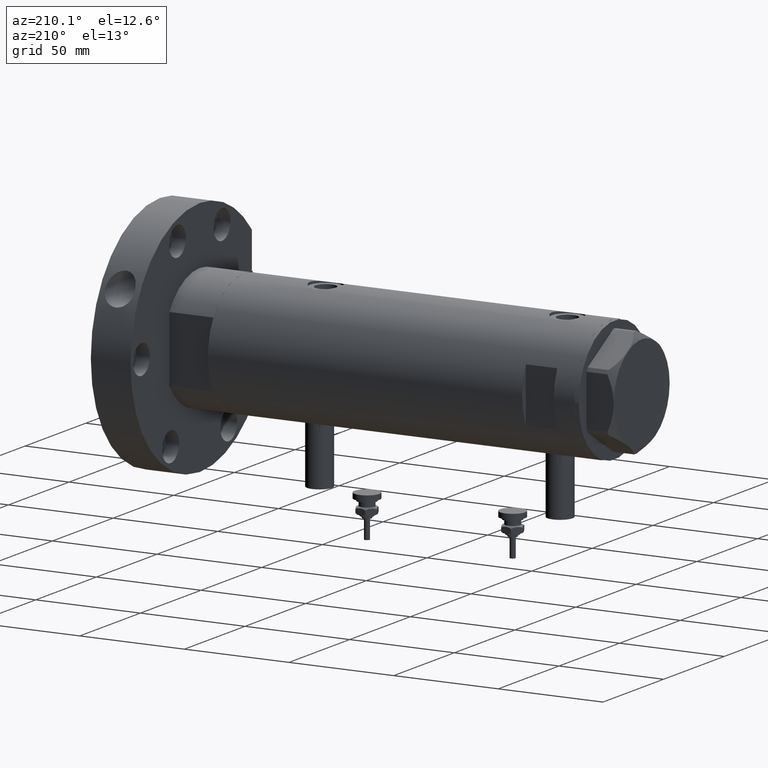
[diagram: clean part render]
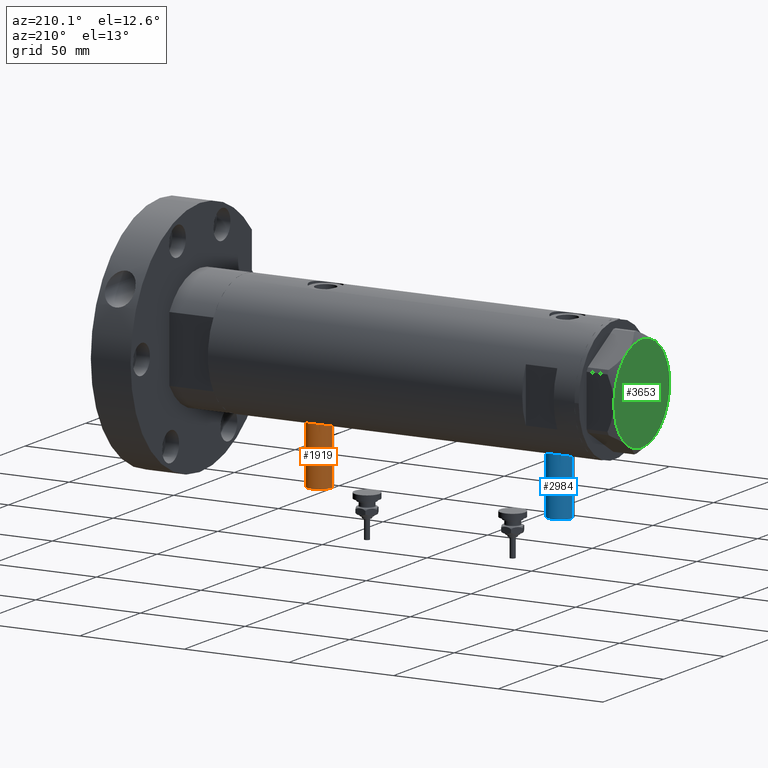
[diagram: same view with three faces highlighted in distinct colors, each labeled with its STEP entity id]
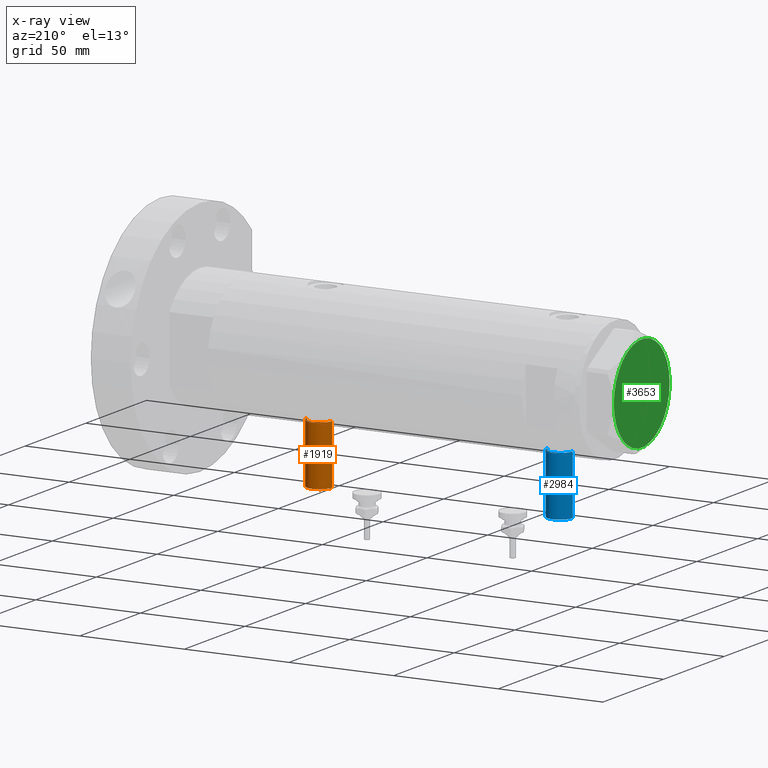
[diagram: x-ray of the same camera — body ghosted, the three highlighted faces saturated]
A machine part, auxiliary view with three faces highlighted in distinct colors.
The next image is the same camera in x-ray (body ghosted, the three faces saturated) — at least one of them is partly hidden behind the body in this view.
Their STEP definitions:

[orange] entity #1919 — the highlighted cylindrical surface (edge-blend (fillet) strip) has radius 6 mm, axis along (0, 0, 1).
#9 = DIRECTION ( 'NONE',  ( 1.000000000000000000, -0.000000000000000000, -0.000000000000000000 ) ) ;
#359 = EDGE_CURVE ( 'NONE', #3602, #4109, #4129, .T. ) ;
#605 = CARTESIAN_POINT ( 'NONE',  ( -56.60000000000000142, 0.000000000000000000, -57.30000000000000426 ) ) ;
#818 = CARTESIAN_POINT ( 'NONE',  ( -56.60000000000000142, 0.000000000000000000, -57.30000000000000426 ) ) ;
#1017 = ORIENTED_EDGE ( 'NONE', *, *, #359, .T. ) ;
#1411 = DIRECTION ( 'NONE',  ( 0.000000000000000000, 0.000000000000000000, 1.000000000000000000 ) ) ;
#1412 = DIRECTION ( 'NONE',  ( 1.000000000000000000, -0.000000000000000000, -0.000000000000000000 ) ) ;
#1431 = VERTEX_POINT ( 'NONE', #605 ) ;
#1517 = DIRECTION ( 'NONE',  ( 0.000000000000000000, 0.000000000000000000, -1.000000000000000000 ) ) ;
#1691 = EDGE_LOOP ( 'NONE', ( #6377, #2900, #1017, #3362 ) ) ;
#1712 = CARTESIAN_POINT ( 'NONE',  ( -56.60000000000000142, 7.347880794884119736E-16, -45.29999999999999005 ) ) ;
#1919 = ADVANCED_FACE ( 'NONE', ( #6992 ), #6423, .T. ) ;
#2112 = EDGE_CURVE ( 'NONE', #6413, #1431, #3649, .T. ) ;
#2355 = EDGE_CURVE ( 'NONE', #1431, #4109, #5571, .T. ) ;
#2900 = ORIENTED_EDGE ( 'NONE', *, *, #4680, .T. ) ;
#2940 = AXIS2_PLACEMENT_3D ( 'NONE', #3698, #6682, #1517 ) ;
#3362 = ORIENTED_EDGE ( 'NONE', *, *, #2355, .F. ) ;
#3496 = CARTESIAN_POINT ( 'NONE',  ( -28.30000000000000071, 0.000000000000000000, -57.30000000000000426 ) ) ;
#3602 = VERTEX_POINT ( 'NONE', #6401 ) ;
#3649 = CIRCLE ( 'NONE', #7576, 6.000000000000005329 ) ;
#3698 = CARTESIAN_POINT ( 'NONE',  ( -56.60000000000000142, 0.000000000000000000, -51.29999999999999716 ) ) ;
#3777 = VECTOR ( 'NONE', #1412, 1000.000000000000000 ) ;
#4015 = DIRECTION ( 'NONE',  ( -1.000000000000000000, 0.000000000000000000, 0.000000000000000000 ) ) ;
#4109 = VERTEX_POINT ( 'NONE', #3496 ) ;
#4129 = CIRCLE ( 'NONE', #6559, 6.000000000000005329 ) ;
#4215 = CARTESIAN_POINT ( 'NONE',  ( -56.60000000000000142, 0.000000000000000000, -51.29999999999999716 ) ) ;
#4680 = EDGE_CURVE ( 'NONE', #6413, #3602, #6398, .T. ) ;
#4722 = CARTESIAN_POINT ( 'NONE',  ( -28.30000000000000071, 0.000000000000000000, -51.29999999999999716 ) ) ;
#5048 = CARTESIAN_POINT ( 'NONE',  ( -56.60000000000000142, 7.347880794884122694E-16, -45.29999999999999005 ) ) ;
#5189 = DIRECTION ( 'NONE',  ( 0.000000000000000000, 0.000000000000000000, 1.000000000000000000 ) ) ;
#5571 = LINE ( 'NONE', #818, #3777 ) ;
#5993 = DIRECTION ( 'NONE',  ( -1.000000000000000000, 0.000000000000000000, 0.000000000000000000 ) ) ;
#6377 = ORIENTED_EDGE ( 'NONE', *, *, #2112, .F. ) ;
#6398 = LINE ( 'NONE', #5048, #7093 ) ;
#6401 = CARTESIAN_POINT ( 'NONE',  ( -28.30000000000000071, 7.347880794884119736E-16, -45.29999999999999005 ) ) ;
#6413 = VERTEX_POINT ( 'NONE', #1712 ) ;
#6423 = CYLINDRICAL_SURFACE ( 'NONE', #2940, 6.000000000000005329 ) ;
#6559 = AXIS2_PLACEMENT_3D ( 'NONE', #4722, #4015, #5189 ) ;
#6682 = DIRECTION ( 'NONE',  ( 1.000000000000000000, -0.000000000000000000, -0.000000000000000000 ) ) ;
#6992 = FACE_OUTER_BOUND ( 'NONE', #1691, .T. ) ;
#7093 = VECTOR ( 'NONE', #9, 1000.000000000000000 ) ;
#7576 = AXIS2_PLACEMENT_3D ( 'NONE', #4215, #5993, #1411 ) ;

[blue] entity #2984 — the highlighted cylindrical surface (edge-blend (fillet) strip) has radius 6 mm, axis along (0, 0, 1).
#437 = CARTESIAN_POINT ( 'NONE',  ( -56.60000000000000142, 0.000000000000000000, 57.60000000000000142 ) ) ;
#464 = VERTEX_POINT ( 'NONE', #5021 ) ;
#474 = DIRECTION ( 'NONE',  ( 1.000000000000000000, -0.000000000000000000, -0.000000000000000000 ) ) ;
#1029 = DIRECTION ( 'NONE',  ( 0.000000000000000000, 0.000000000000000000, -1.000000000000000000 ) ) ;
#1095 = CARTESIAN_POINT ( 'NONE',  ( -56.60000000000000142, 7.347880794884104945E-16, 69.59999999999998010 ) ) ;
#1324 = VERTEX_POINT ( 'NONE', #437 ) ;
#1654 = DIRECTION ( 'NONE',  ( 0.000000000000000000, 0.000000000000000000, 1.000000000000000000 ) ) ;
#1722 = CARTESIAN_POINT ( 'NONE',  ( -56.60000000000000142, 0.000000000000000000, 63.59999999999998721 ) ) ;
#1740 = DIRECTION ( 'NONE',  ( 1.000000000000000000, -0.000000000000000000, -0.000000000000000000 ) ) ;
#1891 = ORIENTED_EDGE ( 'NONE', *, *, #5095, .T. ) ;
#2079 = VERTEX_POINT ( 'NONE', #5681 ) ;
#2130 = EDGE_CURVE ( 'NONE', #1324, #2079, #6942, .T. ) ;
#2261 = ORIENTED_EDGE ( 'NONE', *, *, #6901, .F. ) ;
#2642 = DIRECTION ( 'NONE',  ( 1.000000000000000000, -0.000000000000000000, -0.000000000000000000 ) ) ;
#2757 = VECTOR ( 'NONE', #474, 1000.000000000000000 ) ;
#2778 = DIRECTION ( 'NONE',  ( -1.000000000000000000, 0.000000000000000000, 0.000000000000000000 ) ) ;
#2891 = DIRECTION ( 'NONE',  ( -1.000000000000000000, 0.000000000000000000, 0.000000000000000000 ) ) ;
#2984 = ADVANCED_FACE ( 'NONE', ( #4443 ), #4974, .T. ) ;
#2987 = AXIS2_PLACEMENT_3D ( 'NONE', #1722, #2891, #3403 ) ;
#3278 = ORIENTED_EDGE ( 'NONE', *, *, #7300, .T. ) ;
#3403 = DIRECTION ( 'NONE',  ( 0.000000000000000000, 0.000000000000000000, 1.000000000000000000 ) ) ;
#3477 = EDGE_LOOP ( 'NONE', ( #2261, #3278, #1891, #6498 ) ) ;
#3707 = VERTEX_POINT ( 'NONE', #5242 ) ;
#4040 = VECTOR ( 'NONE', #1740, 1000.000000000000000 ) ;
#4443 = FACE_OUTER_BOUND ( 'NONE', #3477, .T. ) ;
#4521 = AXIS2_PLACEMENT_3D ( 'NONE', #7382, #2778, #1654 ) ;
#4974 = CYLINDRICAL_SURFACE ( 'NONE', #6477, 5.999999999999991118 ) ;
#5021 = CARTESIAN_POINT ( 'NONE',  ( -56.60000000000000142, 7.347880794884101001E-16, 69.59999999999998010 ) ) ;
#5086 = CARTESIAN_POINT ( 'NONE',  ( -56.60000000000000142, 0.000000000000000000, 57.60000000000000142 ) ) ;
#5095 = EDGE_CURVE ( 'NONE', #3707, #2079, #7220, .T. ) ;
#5242 = CARTESIAN_POINT ( 'NONE',  ( -28.30000000000000071, 7.347880794884101001E-16, 69.59999999999998010 ) ) ;
#5681 = CARTESIAN_POINT ( 'NONE',  ( -28.30000000000000071, 0.000000000000000000, 57.60000000000000142 ) ) ;
#6391 = CIRCLE ( 'NONE', #2987, 5.999999999999991118 ) ;
#6477 = AXIS2_PLACEMENT_3D ( 'NONE', #6792, #2642, #1029 ) ;
#6498 = ORIENTED_EDGE ( 'NONE', *, *, #2130, .F. ) ;
#6792 = CARTESIAN_POINT ( 'NONE',  ( -56.60000000000000142, 0.000000000000000000, 63.59999999999998721 ) ) ;
#6901 = EDGE_CURVE ( 'NONE', #464, #1324, #6391, .T. ) ;
#6932 = LINE ( 'NONE', #1095, #2757 ) ;
#6942 = LINE ( 'NONE', #5086, #4040 ) ;
#7220 = CIRCLE ( 'NONE', #4521, 5.999999999999991118 ) ;
#7300 = EDGE_CURVE ( 'NONE', #464, #3707, #6932, .T. ) ;
#7382 = CARTESIAN_POINT ( 'NONE',  ( -28.30000000000000071, 0.000000000000000000, 63.59999999999998721 ) ) ;

[green] entity #3653 — the highlighted planar face has unit normal (-1, -0, 0).
#84 = DIRECTION ( 'NONE',  ( 0.000000000000000000, 0.000000000000000000, 1.000000000000000000 ) ) ;
#183 = EDGE_LOOP ( 'NONE', ( #1814, #6575, #5034, #7236, #5218, #6178 ) ) ;
#315 = CARTESIAN_POINT ( 'NONE',  ( 0.000000000000000000, 0.000000000000000000, 13.00000000000000000 ) ) ;
#394 = CARTESIAN_POINT ( 'NONE',  ( -11.50000000000004441, 19.91858428704211548, 13.00000000000000000 ) ) ;
#502 = VERTEX_POINT ( 'NONE', #2203 ) ;
#956 = VERTEX_POINT ( 'NONE', #2089 ) ;
#994 = CIRCLE ( 'NONE', #1983, 23.00000000000004619 ) ;
#1009 = CIRCLE ( 'NONE', #6487, 23.00000000000004619 ) ;
#1036 = CARTESIAN_POINT ( 'NONE',  ( 0.000000000000000000, 0.000000000000000000, 13.00000000000000000 ) ) ;
#1375 = CARTESIAN_POINT ( 'NONE',  ( 0.000000000000000000, 0.000000000000000000, 13.00000000000000000 ) ) ;
#1451 = DIRECTION ( 'NONE',  ( 1.000000000000000000, 0.000000000000000000, 0.000000000000000000 ) ) ;
#1453 = DIRECTION ( 'NONE',  ( 0.000000000000000000, 0.000000000000000000, 1.000000000000000000 ) ) ;
#1476 = CARTESIAN_POINT ( 'NONE',  ( 0.000000000000000000, 0.000000000000000000, 13.00000000000000000 ) ) ;
#1814 = ORIENTED_EDGE ( 'NONE', *, *, #6503, .T. ) ;
#1983 = AXIS2_PLACEMENT_3D ( 'NONE', #315, #4475, #2760 ) ;
#2089 = CARTESIAN_POINT ( 'NONE',  ( -23.00000000000004619, -8.112498833180673323E-14, 13.00000000000000000 ) ) ;
#2203 = CARTESIAN_POINT ( 'NONE',  ( -11.49999999999990585, -19.91858428704219364, 13.00000000000000000 ) ) ;
#2241 = DIRECTION ( 'NONE',  ( 1.000000000000000000, 0.000000000000000000, 0.000000000000000000 ) ) ;
#2315 = EDGE_CURVE ( 'NONE', #502, #5565, #5471, .T. ) ;
#2350 = DIRECTION ( 'NONE',  ( 1.000000000000000000, 0.000000000000000000, -0.000000000000000000 ) ) ;
#2508 = VERTEX_POINT ( 'NONE', #394 ) ;
#2760 = DIRECTION ( 'NONE',  ( 1.000000000000000000, 0.000000000000000000, 0.000000000000000000 ) ) ;
#2794 = DIRECTION ( 'NONE',  ( 0.000000000000000000, 0.000000000000000000, 1.000000000000000000 ) ) ;
#2844 = VERTEX_POINT ( 'NONE', #7362 ) ;
#2948 = EDGE_CURVE ( 'NONE', #2508, #956, #994, .T. ) ;
#3012 = DIRECTION ( 'NONE',  ( 1.000000000000000000, 0.000000000000000000, 0.000000000000000000 ) ) ;
#3072 = AXIS2_PLACEMENT_3D ( 'NONE', #5522, #1453, #6361 ) ;
#3209 = CIRCLE ( 'NONE', #4182, 23.00000000000004619 ) ;
#3478 = EDGE_CURVE ( 'NONE', #2844, #6166, #6583, .T. ) ;
#3653 = ADVANCED_FACE ( 'NONE', ( #4412 ), #7521, .T. ) ;
#3779 = DIRECTION ( 'NONE',  ( 0.000000000000000000, 0.000000000000000000, 1.000000000000000000 ) ) ;
#4182 = AXIS2_PLACEMENT_3D ( 'NONE', #1036, #2794, #2241 ) ;
#4412 = FACE_OUTER_BOUND ( 'NONE', #183, .T. ) ;
#4475 = DIRECTION ( 'NONE',  ( 0.000000000000000000, 0.000000000000000000, 1.000000000000000000 ) ) ;
#4501 = AXIS2_PLACEMENT_3D ( 'NONE', #4591, #4941, #2350 ) ;
#4591 = CARTESIAN_POINT ( 'NONE',  ( 0.000000000000000000, 0.000000000000000000, 13.00000000000000000 ) ) ;
#4941 = DIRECTION ( 'NONE',  ( 0.000000000000000000, 0.000000000000000000, 1.000000000000000000 ) ) ;
#5034 = ORIENTED_EDGE ( 'NONE', *, *, #5194, .T. ) ;
#5194 = EDGE_CURVE ( 'NONE', #6166, #2508, #5255, .T. ) ;
#5218 = ORIENTED_EDGE ( 'NONE', *, *, #5815, .T. ) ;
#5255 = CIRCLE ( 'NONE', #3072, 23.00000000000004619 ) ;
#5471 = CIRCLE ( 'NONE', #5963, 23.00000000000004619 ) ;
#5522 = CARTESIAN_POINT ( 'NONE',  ( 0.000000000000000000, 0.000000000000000000, 13.00000000000000000 ) ) ;
#5565 = VERTEX_POINT ( 'NONE', #6356 ) ;
#5815 = EDGE_CURVE ( 'NONE', #956, #502, #1009, .T. ) ;
#5963 = AXIS2_PLACEMENT_3D ( 'NONE', #6439, #84, #3012 ) ;
#6097 = DIRECTION ( 'NONE',  ( 1.000000000000000000, 0.000000000000000000, 0.000000000000000000 ) ) ;
#6166 = VERTEX_POINT ( 'NONE', #6318 ) ;
#6178 = ORIENTED_EDGE ( 'NONE', *, *, #2315, .T. ) ;
#6318 = CARTESIAN_POINT ( 'NONE',  ( 11.49999999999990408, 19.91858428704219364, 13.00000000000000000 ) ) ;
#6356 = CARTESIAN_POINT ( 'NONE',  ( 11.50000000000018296, -19.91858428704203732, 13.00000000000000000 ) ) ;
#6361 = DIRECTION ( 'NONE',  ( 1.000000000000000000, 0.000000000000000000, 0.000000000000000000 ) ) ;
#6439 = CARTESIAN_POINT ( 'NONE',  ( 0.000000000000000000, 0.000000000000000000, 13.00000000000000000 ) ) ;
#6487 = AXIS2_PLACEMENT_3D ( 'NONE', #1375, #6665, #1451 ) ;
#6503 = EDGE_CURVE ( 'NONE', #5565, #2844, #3209, .T. ) ;
#6575 = ORIENTED_EDGE ( 'NONE', *, *, #3478, .T. ) ;
#6583 = CIRCLE ( 'NONE', #6707, 23.00000000000004619 ) ;
#6665 = DIRECTION ( 'NONE',  ( 0.000000000000000000, 0.000000000000000000, 1.000000000000000000 ) ) ;
#6707 = AXIS2_PLACEMENT_3D ( 'NONE', #1476, #3779, #6097 ) ;
#7236 = ORIENTED_EDGE ( 'NONE', *, *, #2948, .T. ) ;
#7362 = CARTESIAN_POINT ( 'NONE',  ( 22.99999999999995026, 2.373657066004705010E-13, 13.00000000000000000 ) ) ;
#7521 = PLANE ( 'NONE',  #4501 ) ;